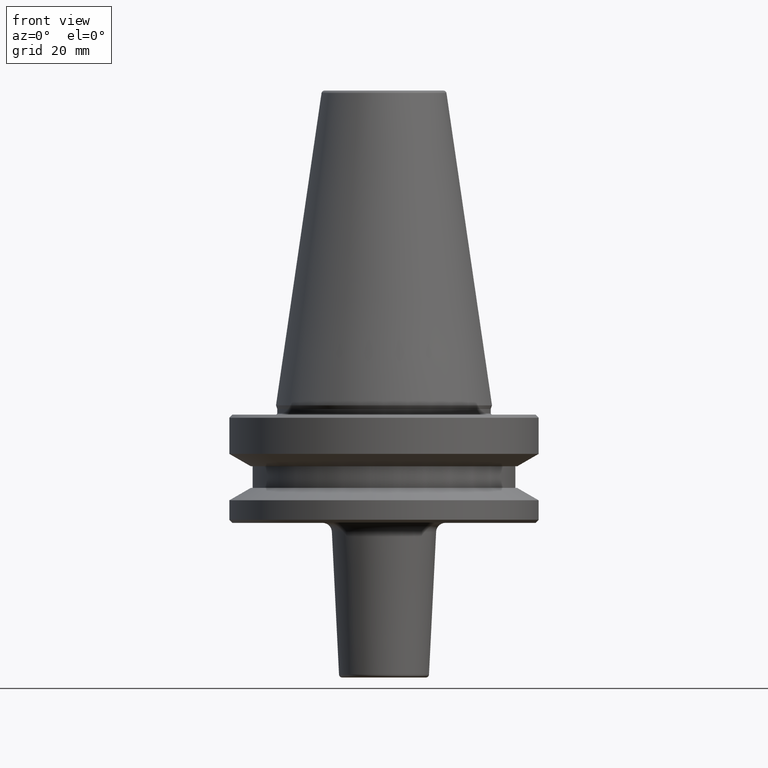
[diagram: clean part render]
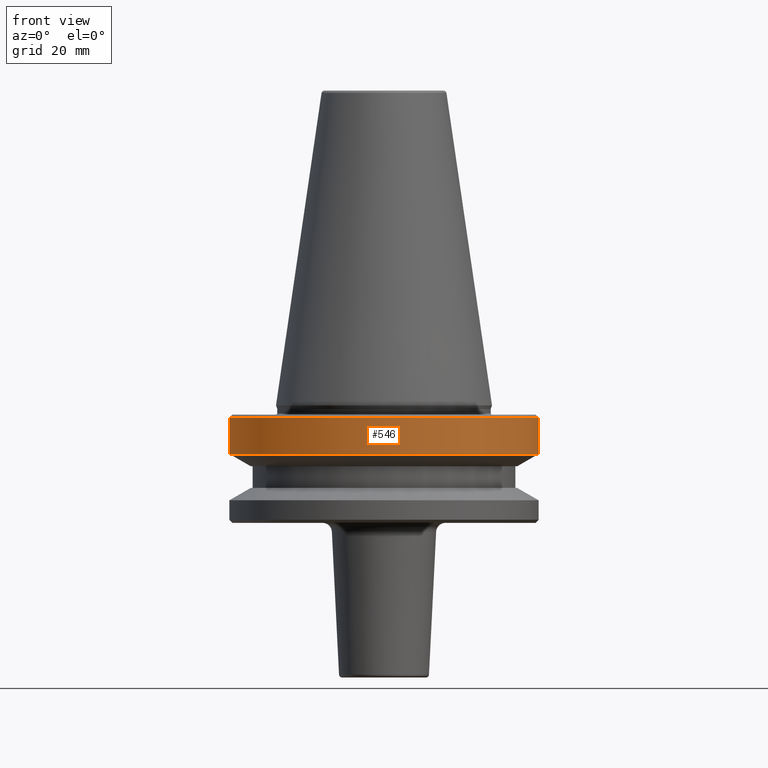
[diagram: same view with one face highlighted and labeled with its STEP entity id]
A machine part, front view. The second image highlights one B-rep face of the part: STEP entity #546.
In plain terms, the highlighted cylindrical surface (partial cylindrical patch) has radius 50 mm, axis along (-0, -0, 1).
Its self-contained STEP definition (entity closure, byte-faithful):
#53 = ORIENTED_EDGE ( 'NONE', *, *, #999, .F. ) ;
#83 = ORIENTED_EDGE ( 'NONE', *, *, #888, .F. ) ;
#159 = DIRECTION ( 'NONE',  ( 1.000000000000000000, 0.0000000000000000000, 0.0000000000000000000 ) ) ;
#189 = CARTESIAN_POINT ( 'NONE',  ( 0.0000000000000000000, 0.0000000000000000000, -3.999999999999989800 ) ) ;
#218 = CARTESIAN_POINT ( 'NONE',  ( 50.00000000000000000, 0.0000000000000000000, -15.70022000322675400 ) ) ;
#246 = CARTESIAN_POINT ( 'NONE',  ( -50.00000000000000000, 6.123233995736766100E-015, -3.999999999999989800 ) ) ;
#249 = VECTOR ( 'NONE', #497, 1000.000000000000000 ) ;
#260 = DIRECTION ( 'NONE',  ( 1.000000000000000000, 0.0000000000000000000, 0.0000000000000000000 ) ) ;
#271 = CARTESIAN_POINT ( 'NONE',  ( -50.00000000000000000, 6.123233995736766100E-015, 124.5046326327850600 ) ) ;
#290 = CARTESIAN_POINT ( 'NONE',  ( 0.0000000000000000000, 0.0000000000000000000, -15.70022000322675400 ) ) ;
#302 = FACE_OUTER_BOUND ( 'NONE', #774, .T. ) ;
#370 = DIRECTION ( 'NONE',  ( 1.000000000000000000, 0.0000000000000000000, 0.0000000000000000000 ) ) ;
#407 = VERTEX_POINT ( 'NONE', #246 ) ;
#421 = CARTESIAN_POINT ( 'NONE',  ( 50.00000000000000000, 0.0000000000000000000, 124.5046326327850600 ) ) ;
#497 = DIRECTION ( 'NONE',  ( -0.0000000000000000000, -0.0000000000000000000, 1.000000000000000000 ) ) ;
#537 = AXIS2_PLACEMENT_3D ( 'NONE', #669, #741, #159 ) ;
#546 = ADVANCED_FACE ( 'NONE', ( #302 ), #948, .T. ) ;
#549 = AXIS2_PLACEMENT_3D ( 'NONE', #189, #728, #260 ) ;
#568 = AXIS2_PLACEMENT_3D ( 'NONE', #290, #832, #370 ) ;
#625 = VECTOR ( 'NONE', #813, 1000.000000000000000 ) ;
#636 = CIRCLE ( 'NONE', #568, 50.00000000000000000 ) ;
#669 = CARTESIAN_POINT ( 'NONE',  ( 0.0000000000000000000, 0.0000000000000000000, 124.5046326327850600 ) ) ;
#700 = LINE ( 'NONE', #421, #249 ) ;
#714 = VERTEX_POINT ( 'NONE', #218 ) ;
#728 = DIRECTION ( 'NONE',  ( -0.0000000000000000000, -0.0000000000000000000, 1.000000000000000000 ) ) ;
#729 = CARTESIAN_POINT ( 'NONE',  ( 50.00000000000000000, 0.0000000000000000000, -3.999999999999989800 ) ) ;
#733 = VERTEX_POINT ( 'NONE', #760 ) ;
#741 = DIRECTION ( 'NONE',  ( -0.0000000000000000000, -0.0000000000000000000, 1.000000000000000000 ) ) ;
#750 = LINE ( 'NONE', #271, #625 ) ;
#760 = CARTESIAN_POINT ( 'NONE',  ( -50.00000000000000000, 6.123233995736766900E-015, -15.70022000322675400 ) ) ;
#774 = EDGE_LOOP ( 'NONE', ( #83, #924, #847, #53 ) ) ;
#785 = EDGE_CURVE ( 'NONE', #733, #714, #636, .T. ) ;
#813 = DIRECTION ( 'NONE',  ( -0.0000000000000000000, -0.0000000000000000000, 1.000000000000000000 ) ) ;
#832 = DIRECTION ( 'NONE',  ( -0.0000000000000000000, -0.0000000000000000000, 1.000000000000000000 ) ) ;
#847 = ORIENTED_EDGE ( 'NONE', *, *, #975, .T. ) ;
#852 = VERTEX_POINT ( 'NONE', #729 ) ;
#888 = EDGE_CURVE ( 'NONE', #733, #407, #750, .T. ) ;
#924 = ORIENTED_EDGE ( 'NONE', *, *, #785, .T. ) ;
#929 = CIRCLE ( 'NONE', #549, 50.00000000000000000 ) ;
#948 = CYLINDRICAL_SURFACE ( 'NONE', #537, 50.00000000000000000 ) ;
#975 = EDGE_CURVE ( 'NONE', #714, #852, #700, .T. ) ;
#999 = EDGE_CURVE ( 'NONE', #407, #852, #929, .T. ) ;